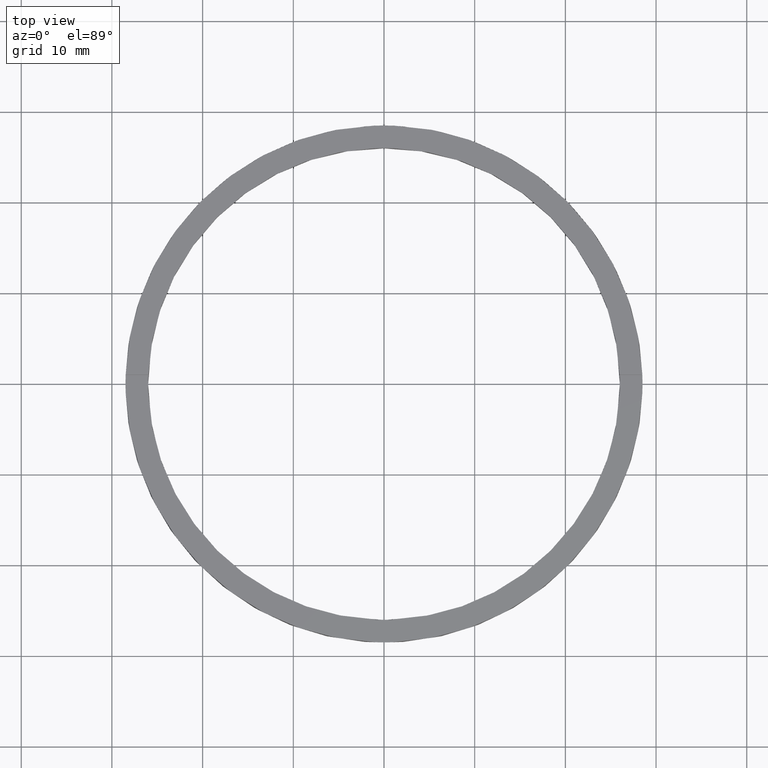
[diagram: clean part render]
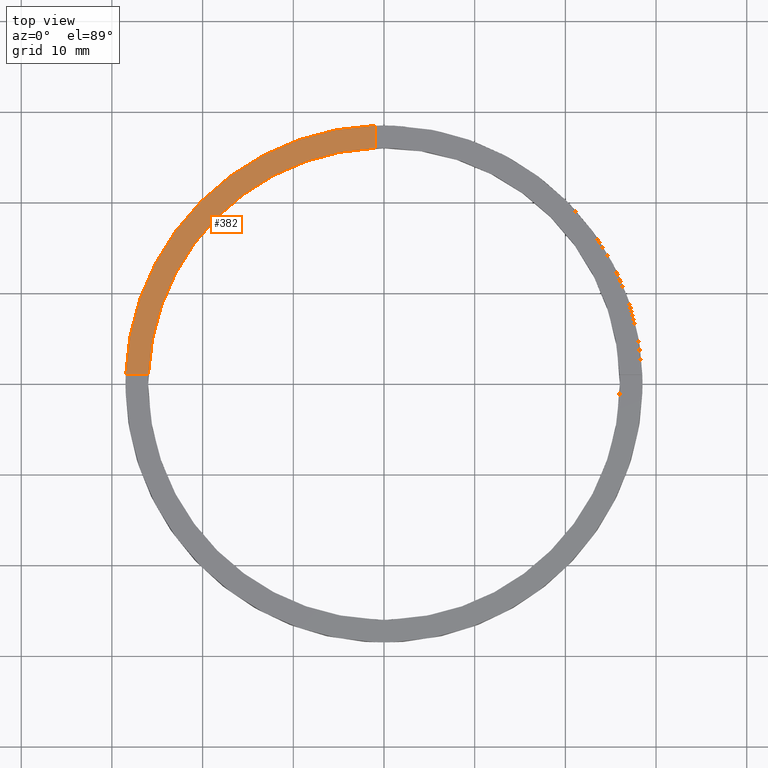
[diagram: same view with one face highlighted and labeled with its STEP entity id]
A machine part, top view. The second image highlights one B-rep face of the part: STEP entity #382.
In plain terms, the highlighted planar face has unit normal (0, 0, 1).
Its self-contained STEP definition (entity closure, byte-faithful):
#15 = DIRECTION ( 'NONE',  ( 1.000000000000000000, 0.000000000000000000, 0.000000000000000000 ) ) ;
#42 = CARTESIAN_POINT ( 'NONE',  ( 0.000000000000000000, 0.000000000000000000, 2.500000000000000000 ) ) ;
#50 = AXIS2_PLACEMENT_3D ( 'NONE', #88, #527, #15 ) ;
#88 = CARTESIAN_POINT ( 'NONE',  ( 0.000000000000000000, 0.000000000000000000, 2.500000000000000000 ) ) ;
#92 = ORIENTED_EDGE ( 'NONE', *, *, #386, .F. ) ;
#139 = VECTOR ( 'NONE', #406, 1000.000000000000000 ) ;
#149 = LINE ( 'NONE', #411, #139 ) ;
#171 = CIRCLE ( 'NONE', #337, 28.50000000000000000 ) ;
#194 = EDGE_LOOP ( 'NONE', ( #92, #609, #623, #374 ) ) ;
#218 = VERTEX_POINT ( 'NONE', #626 ) ;
#240 = DIRECTION ( 'NONE',  ( 1.000000000000000000, 0.000000000000000000, -0.000000000000000000 ) ) ;
#244 = CARTESIAN_POINT ( 'NONE',  ( 0.000000000000000000, 0.000000000000000000, 2.500000000000000000 ) ) ;
#283 = PLANE ( 'NONE',  #640 ) ;
#320 = EDGE_CURVE ( 'NONE', #218, #616, #149, .T. ) ;
#337 = AXIS2_PLACEMENT_3D ( 'NONE', #42, #580, #729 ) ;
#346 = EDGE_CURVE ( 'NONE', #769, #218, #416, .T. ) ;
#374 = ORIENTED_EDGE ( 'NONE', *, *, #346, .F. ) ;
#382 = ADVANCED_FACE ( 'NONE', ( #421 ), #283, .T. ) ;
#386 = EDGE_CURVE ( 'NONE', #464, #769, #673, .T. ) ;
#406 = DIRECTION ( 'NONE',  ( -1.000000000000000000, -1.734723475976807341E-16, 0.000000000000000000 ) ) ;
#411 = CARTESIAN_POINT ( 'NONE',  ( -18.50000000000018474, 0.9999999999999746869, 2.500000000000000000 ) ) ;
#416 = CIRCLE ( 'NONE', #50, 26.00000000000000355 ) ;
#419 = CARTESIAN_POINT ( 'NONE',  ( -1.000000000000026423, 25.98076211353316367, 2.500000000000000000 ) ) ;
#421 = FACE_OUTER_BOUND ( 'NONE', #194, .T. ) ;
#464 = VERTEX_POINT ( 'NONE', #583 ) ;
#527 = DIRECTION ( 'NONE',  ( 0.000000000000000000, 0.000000000000000000, 1.000000000000000000 ) ) ;
#534 = CARTESIAN_POINT ( 'NONE',  ( -1.000000000000026423, 18.50000000000000355, 2.500000000000000000 ) ) ;
#580 = DIRECTION ( 'NONE',  ( 0.000000000000000000, 0.000000000000000000, 1.000000000000000000 ) ) ;
#583 = CARTESIAN_POINT ( 'NONE',  ( -1.000000000000026423, 28.48245073725222909, 2.500000000000000000 ) ) ;
#590 = DIRECTION ( 'NONE',  ( 0.000000000000000000, 0.000000000000000000, 1.000000000000000000 ) ) ;
#609 = ORIENTED_EDGE ( 'NONE', *, *, #678, .T. ) ;
#616 = VERTEX_POINT ( 'NONE', #701 ) ;
#623 = ORIENTED_EDGE ( 'NONE', *, *, #320, .F. ) ;
#626 = CARTESIAN_POINT ( 'NONE',  ( -25.98076211353316367, 0.9999999999999733546, 2.500000000000000000 ) ) ;
#640 = AXIS2_PLACEMENT_3D ( 'NONE', #244, #590, #240 ) ;
#651 = VECTOR ( 'NONE', #667, 1000.000000000000000 ) ;
#667 = DIRECTION ( 'NONE',  ( -0.000000000000000000, -1.000000000000000000, -0.000000000000000000 ) ) ;
#673 = LINE ( 'NONE', #534, #651 ) ;
#678 = EDGE_CURVE ( 'NONE', #464, #616, #171, .T. ) ;
#701 = CARTESIAN_POINT ( 'NONE',  ( -28.48245073725223264, 0.9999999999999729106, 2.500000000000000000 ) ) ;
#729 = DIRECTION ( 'NONE',  ( 1.000000000000000000, 0.000000000000000000, 0.000000000000000000 ) ) ;
#769 = VERTEX_POINT ( 'NONE', #419 ) ;